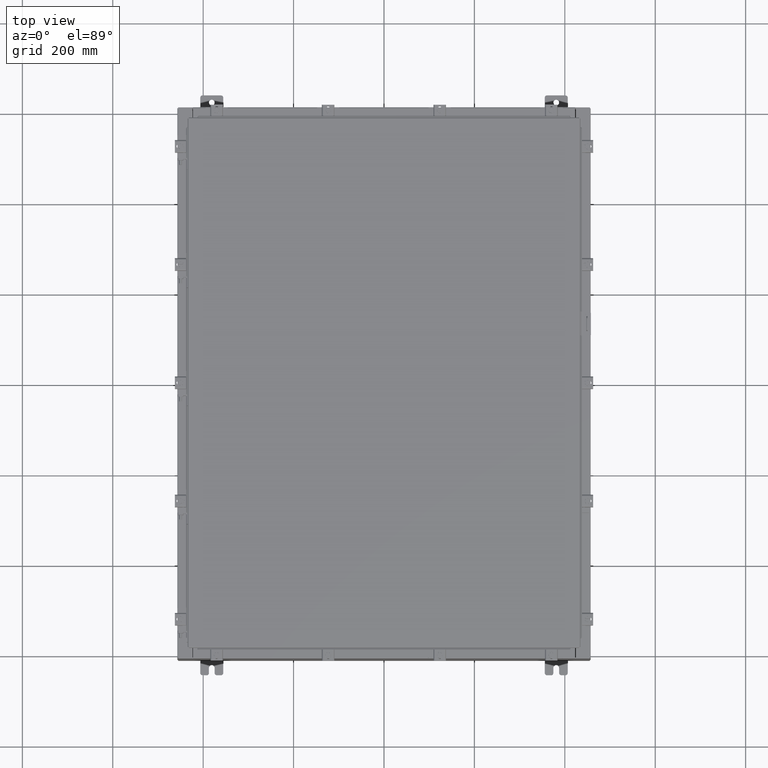
[diagram: clean part render]
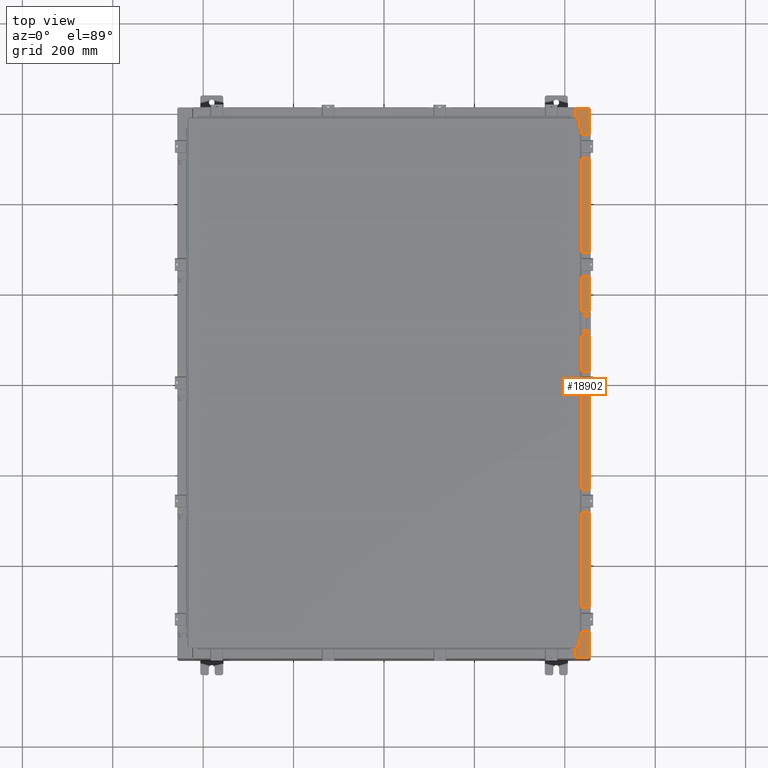
[diagram: same view with one face highlighted and labeled with its STEP entity id]
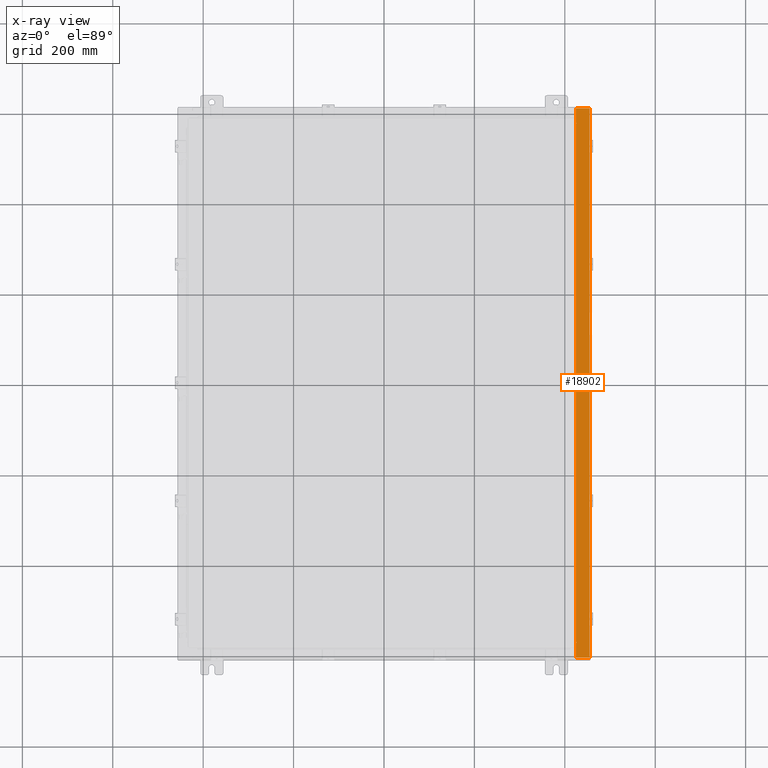
[diagram: x-ray of the same camera — body ghosted, the highlighted face saturated]
A machine part, top view. The second image highlights one B-rep face of the part: STEP entity #18902.
The next image is the same camera in x-ray: the body ghosted, the highlighted face saturated — about 0% of this face is hidden behind the body in this view.
In plain terms, the highlighted planar face has unit normal (-0, 0, -1).
Its self-contained STEP definition (entity closure, byte-faithful):
#327 = ORIENTED_EDGE ( 'NONE', *, *, #25757, .F. ) ;
#731 = CARTESIAN_POINT ( 'NONE',  ( 8.532114493236880700E-014, 23.92529999999998600, 11.92530000000013000 ) ) ;
#1252 = EDGE_CURVE ( 'NONE', #10635, #20142, #14419, .T. ) ;
#1533 = LINE ( 'NONE', #13876, #23382 ) ;
#1651 = VECTOR ( 'NONE', #26759, 39.37007874015748100 ) ;
#1795 = LINE ( 'NONE', #6964, #22993 ) ;
#2088 = CARTESIAN_POINT ( 'NONE',  ( 16.75005000000003700, -22.59374999999998900, 11.92530000000000900 ) ) ;
#2235 = DIRECTION ( 'NONE',  ( 7.132762385546384700E-015, 0.0000000000000000000, 1.000000000000000000 ) ) ;
#2238 = ORIENTED_EDGE ( 'NONE', *, *, #18993, .T. ) ;
#2614 = CARTESIAN_POINT ( 'NONE',  ( 16.69970000000003900, 22.63109999999996800, 11.92530000000000900 ) ) ;
#2664 = ORIENTED_EDGE ( 'NONE', *, *, #1252, .T. ) ;
#3241 = EDGE_CURVE ( 'NONE', #22066, #19515, #12664, .T. ) ;
#3531 = EDGE_CURVE ( 'NONE', #5426, #8488, #23496, .T. ) ;
#3539 = ORIENTED_EDGE ( 'NONE', *, *, #22468, .F. ) ;
#3855 = ORIENTED_EDGE ( 'NONE', *, *, #15956, .F. ) ;
#4371 = EDGE_CURVE ( 'NONE', #19515, #18332, #23138, .T. ) ;
#5413 = DIRECTION ( 'NONE',  ( 1.000000000000000000, 0.0000000000000000000, 0.0000000000000000000 ) ) ;
#5426 = VERTEX_POINT ( 'NONE', #14622 ) ;
#5590 = LINE ( 'NONE', #22080, #9894 ) ;
#5695 = VECTOR ( 'NONE', #23301, 39.37007874015748100 ) ;
#6454 = DIRECTION ( 'NONE',  ( 7.132762385546384700E-015, 0.0000000000000000000, 1.000000000000000000 ) ) ;
#6761 = ORIENTED_EDGE ( 'NONE', *, *, #20054, .F. ) ;
#6964 = CARTESIAN_POINT ( 'NONE',  ( 17.91230000000003700, -23.92529999999998900, 11.92530000000000400 ) ) ;
#7599 = VERTEX_POINT ( 'NONE', #2088 ) ;
#7677 = CARTESIAN_POINT ( 'NONE',  ( 16.71270000000003700, 22.59374999999997200, 11.92530000000001200 ) ) ;
#7831 = CARTESIAN_POINT ( 'NONE',  ( 16.69970000000003900, -22.63109999999998600, 11.92530000000000900 ) ) ;
#7863 = CARTESIAN_POINT ( 'NONE',  ( 17.91230000000003700, 23.92529999999998600, 11.92530000000000400 ) ) ;
#8007 = CARTESIAN_POINT ( 'NONE',  ( 16.69970000000003900, 0.0000000000000000000, 11.92530000000000900 ) ) ;
#8488 = VERTEX_POINT ( 'NONE', #2614 ) ;
#9010 = DIRECTION ( 'NONE',  ( -1.000000000000000000, 0.0000000000000000000, 7.132762385546384700E-015 ) ) ;
#9084 = DIRECTION ( 'NONE',  ( -0.0000000000000000000, -1.000000000000000000, -0.0000000000000000000 ) ) ;
#9303 = CARTESIAN_POINT ( 'NONE',  ( 16.75005000000003700, 22.59374999999997200, 11.92530000000000900 ) ) ;
#9758 = VECTOR ( 'NONE', #18326, 39.37007874015748100 ) ;
#9894 = VECTOR ( 'NONE', #24181, 39.37007874015748100 ) ;
#10537 = DIRECTION ( 'NONE',  ( 1.000000000000000000, 0.0000000000000000000, -7.132762385546384700E-015 ) ) ;
#10635 = VERTEX_POINT ( 'NONE', #22428 ) ;
#10688 = ORIENTED_EDGE ( 'NONE', *, *, #22162, .F. ) ;
#10829 = CIRCLE ( 'NONE', #25659, 0.01867499999999949400 ) ;
#12664 = LINE ( 'NONE', #19328, #5695 ) ;
#13195 = EDGE_LOOP ( 'NONE', ( #3855, #17161, #2664, #327, #2238, #26798, #3539, #25152, #13864, #22228, #6761, #10688 ) ) ;
#13273 = VECTOR ( 'NONE', #5413, 39.37007874015748100 ) ;
#13496 = CARTESIAN_POINT ( 'NONE',  ( 16.71270000000003700, 22.59374999999997200, 11.92530000000001200 ) ) ;
#13602 = DIRECTION ( 'NONE',  ( -1.000000000000000000, 0.0000000000000000000, -4.340572780400098900E-014 ) ) ;
#13864 = ORIENTED_EDGE ( 'NONE', *, *, #4371, .F. ) ;
#13876 = CARTESIAN_POINT ( 'NONE',  ( 16.69970000000003900, 0.0000000000000000000, 11.92530000000000900 ) ) ;
#14419 = LINE ( 'NONE', #18895, #15079 ) ;
#14622 = CARTESIAN_POINT ( 'NONE',  ( 16.69970000000003900, 23.92529999999998200, 11.92530000000000900 ) ) ;
#14744 = LINE ( 'NONE', #7831, #9758 ) ;
#14807 = EDGE_CURVE ( 'NONE', #18332, #21007, #24789, .T. ) ;
#14819 = VERTEX_POINT ( 'NONE', #25314 ) ;
#14935 = VECTOR ( 'NONE', #19847, 39.37007874015748100 ) ;
#14974 = CARTESIAN_POINT ( 'NONE',  ( 16.75005000000003700, 22.61242499999997000, 11.92530000000001200 ) ) ;
#15079 = VECTOR ( 'NONE', #10537, 39.37007874015748100 ) ;
#15956 = EDGE_CURVE ( 'NONE', #14819, #23326, #14744, .T. ) ;
#16137 = LINE ( 'NONE', #26172, #26598 ) ;
#16206 = AXIS2_PLACEMENT_3D ( 'NONE', #14974, #2235, #17092 ) ;
#16769 = CARTESIAN_POINT ( 'NONE',  ( 16.71270000000003700, -22.59374999999998900, 11.92530000000001200 ) ) ;
#16927 = FACE_OUTER_BOUND ( 'NONE', #13195, .T. ) ;
#17092 = DIRECTION ( 'NONE',  ( 1.000000000000000000, 0.0000000000000000000, 0.0000000000000000000 ) ) ;
#17161 = ORIENTED_EDGE ( 'NONE', *, *, #24410, .T. ) ;
#17449 = CARTESIAN_POINT ( 'NONE',  ( 8.532114493236880700E-014, 0.0000000000000000000, 11.92530000000013000 ) ) ;
#18326 = DIRECTION ( 'NONE',  ( 1.000000000000000000, 0.0000000000000000000, 4.340572780400098900E-014 ) ) ;
#18332 = VERTEX_POINT ( 'NONE', #9303 ) ;
#18895 = CARTESIAN_POINT ( 'NONE',  ( 8.532114493236880700E-014, -23.92529999999998900, 11.92530000000013000 ) ) ;
#18902 = ADVANCED_FACE ( 'NONE', ( #16927 ), #19577, .F. ) ;
#18993 = EDGE_CURVE ( 'NONE', #25946, #5426, #20542, .T. ) ;
#19135 = CARTESIAN_POINT ( 'NONE',  ( 16.75005000000003700, 22.63109999999996800, 11.92530000000000900 ) ) ;
#19164 = CARTESIAN_POINT ( 'NONE',  ( 16.75005000000003700, -22.61242499999998800, 11.92530000000001200 ) ) ;
#19328 = CARTESIAN_POINT ( 'NONE',  ( 16.71270000000003700, -22.59374999999998900, 11.92530000000001200 ) ) ;
#19515 = VERTEX_POINT ( 'NONE', #7677 ) ;
#19577 = PLANE ( 'NONE',  #19839 ) ;
#19839 = AXIS2_PLACEMENT_3D ( 'NONE', #17449, #21673, #9010 ) ;
#19847 = DIRECTION ( 'NONE',  ( -1.000000000000000000, 0.0000000000000000000, 7.132762385546384700E-015 ) ) ;
#20054 = EDGE_CURVE ( 'NONE', #7599, #22066, #5590, .T. ) ;
#20142 = VERTEX_POINT ( 'NONE', #24449 ) ;
#20244 = DIRECTION ( 'NONE',  ( 0.0000000000000000000, -1.000000000000000000, 0.0000000000000000000 ) ) ;
#20542 = LINE ( 'NONE', #731, #14935 ) ;
#21007 = VERTEX_POINT ( 'NONE', #19135 ) ;
#21263 = DIRECTION ( 'NONE',  ( 1.000000000000000000, 0.0000000000000000000, 0.0000000000000000000 ) ) ;
#21673 = DIRECTION ( 'NONE',  ( -7.132762385546384700E-015, 0.0000000000000000000, -1.000000000000000000 ) ) ;
#22066 = VERTEX_POINT ( 'NONE', #16769 ) ;
#22080 = CARTESIAN_POINT ( 'NONE',  ( 16.75005000000003700, -22.59374999999998900, 11.92530000000001200 ) ) ;
#22162 = EDGE_CURVE ( 'NONE', #23326, #7599, #10829, .T. ) ;
#22228 = ORIENTED_EDGE ( 'NONE', *, *, #3241, .F. ) ;
#22428 = CARTESIAN_POINT ( 'NONE',  ( 16.69970000000003900, -23.92529999999998900, 11.92530000000000900 ) ) ;
#22468 = EDGE_CURVE ( 'NONE', #21007, #8488, #16137, .T. ) ;
#22479 = CARTESIAN_POINT ( 'NONE',  ( 16.75005000000003700, -22.63109999999998600, 11.92530000000000900 ) ) ;
#22993 = VECTOR ( 'NONE', #9084, 39.37007874015748100 ) ;
#23138 = LINE ( 'NONE', #13496, #13273 ) ;
#23301 = DIRECTION ( 'NONE',  ( -0.0000000000000000000, 1.000000000000000000, -0.0000000000000000000 ) ) ;
#23326 = VERTEX_POINT ( 'NONE', #22479 ) ;
#23382 = VECTOR ( 'NONE', #20244, 39.37007874015748100 ) ;
#23496 = LINE ( 'NONE', #8007, #1651 ) ;
#24181 = DIRECTION ( 'NONE',  ( -1.000000000000000000, 0.0000000000000000000, 0.0000000000000000000 ) ) ;
#24410 = EDGE_CURVE ( 'NONE', #14819, #10635, #1533, .T. ) ;
#24449 = CARTESIAN_POINT ( 'NONE',  ( 17.91230000000003700, -23.92529999999998900, 11.92530000000000400 ) ) ;
#24789 = CIRCLE ( 'NONE', #16206, 0.01867499999999949400 ) ;
#25152 = ORIENTED_EDGE ( 'NONE', *, *, #14807, .F. ) ;
#25314 = CARTESIAN_POINT ( 'NONE',  ( 16.69970000000003900, -22.63109999999998600, 11.92530000000000900 ) ) ;
#25659 = AXIS2_PLACEMENT_3D ( 'NONE', #19164, #6454, #21263 ) ;
#25757 = EDGE_CURVE ( 'NONE', #25946, #20142, #1795, .T. ) ;
#25946 = VERTEX_POINT ( 'NONE', #7863 ) ;
#26172 = CARTESIAN_POINT ( 'NONE',  ( 16.75005000000003700, 22.63109999999996800, 11.92530000000001200 ) ) ;
#26598 = VECTOR ( 'NONE', #13602, 39.37007874015748100 ) ;
#26759 = DIRECTION ( 'NONE',  ( 0.0000000000000000000, -1.000000000000000000, 0.0000000000000000000 ) ) ;
#26798 = ORIENTED_EDGE ( 'NONE', *, *, #3531, .T. ) ;